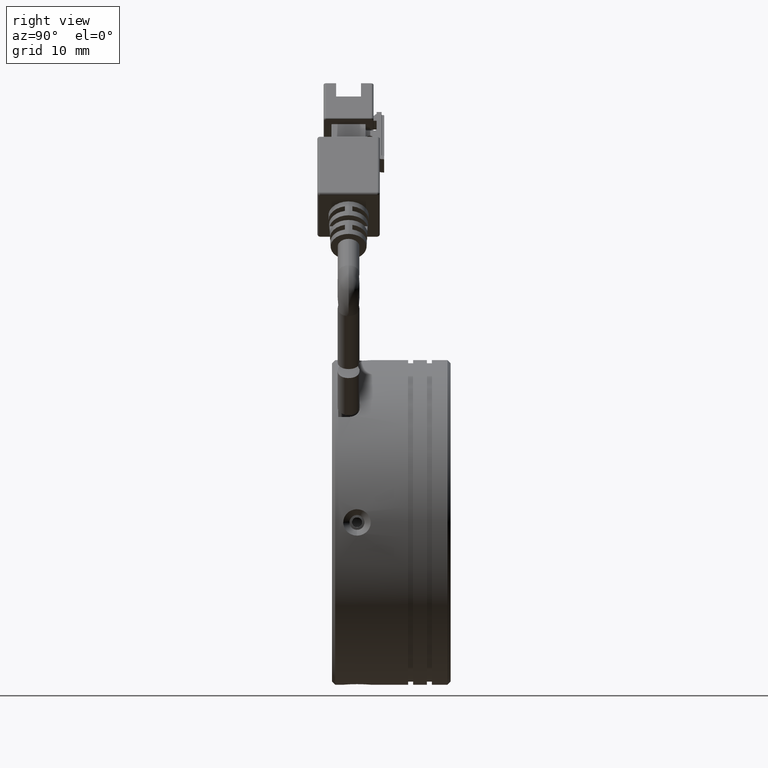
[diagram: clean part render]
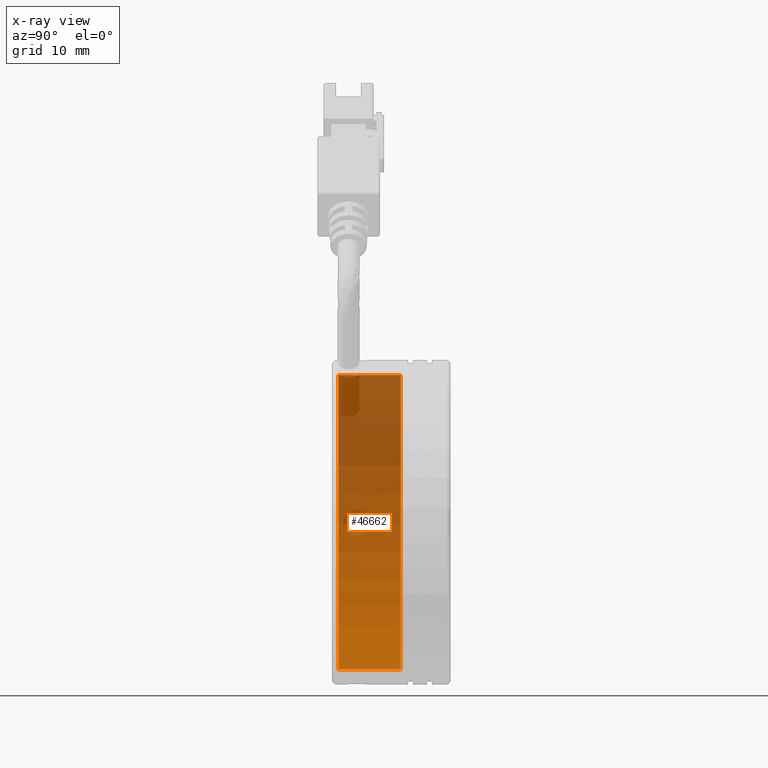
[diagram: x-ray — body ghosted, one internal face saturated and labeled with its STEP entity id]
A machine part, right view, then the same camera in x-ray: the body is ghosted and one INTERNAL B-rep face — a face not visible from any outside direction — is saturated and labeled: STEP entity #46662.
In plain terms, the highlighted cylindrical surface (partial cylindrical patch) has radius 23.6 mm, axis along (-0, -1, -0).
Its self-contained STEP definition (entity closure, byte-faithful):
#273 = CARTESIAN_POINT ( 'NONE',  ( -24.41270825699534800, -2.019923829761832000, -1.200000000000080600 ) ) ;
#351 = CARTESIAN_POINT ( 'NONE',  ( -1.891704058667388600, -2.624435281728529000, -23.57677552797129600 ) ) ;
#484 = CARTESIAN_POINT ( 'NONE',  ( -0.8432364767453736100, -5.019923829761831200, 23.59999999999999800 ) ) ;
#539 = CYLINDRICAL_SURFACE ( 'NONE', #46180, 23.59999999999999800 ) ;
#638 = VERTEX_POINT ( 'NONE', #42547 ) ;
#853 = VECTOR ( 'NONE', #6918, 1000.000000000000000 ) ;
#1387 = EDGE_CURVE ( 'NONE', #26175, #40789, #21824, .T. ) ;
#1430 = CARTESIAN_POINT ( 'NONE',  ( -1.802132564627843200, -1.281685546569973500, 23.58077143608722500 ) ) ;
#1921 = CARTESIAN_POINT ( 'NONE',  ( -1.157246261397692800, -0.8511140777613299700, -23.59835807141496400 ) ) ;
#1962 = CARTESIAN_POINT ( 'NONE',  ( -24.43202870784420000, -1.058868085110809700, -0.7358388954863058800 ) ) ;
#2073 = CARTESIAN_POINT ( 'NONE',  ( -24.42002881385663200, -2.625118701094709000, 1.048097340513627100 ) ) ;
#2888 = ORIENTED_EDGE ( 'NONE', *, *, #14032, .F. ) ;
#2962 = CARTESIAN_POINT ( 'NONE',  ( -0.8432364767453736100, -21.81214605198405500, 23.59999999999999800 ) ) ;
#3019 = CIRCLE ( 'NONE', #46726, 23.59999999999999800 ) ;
#3418 = CARTESIAN_POINT ( 'NONE',  ( -2.011380267493088500, -1.703945199785817000, -23.57114841574022500 ) ) ;
#3534 = DIRECTION ( 'NONE',  ( 0.0000000000000000000, 0.0000000000000000000, -1.000000000000000000 ) ) ;
#4137 = CARTESIAN_POINT ( 'NONE',  ( -1.581474895547215800, -2.978819811423894400, -23.58871022242496100 ) ) ;
#4280 = CARTESIAN_POINT ( 'NONE',  ( -2.012046225754328800, -2.333933601142113000, 23.57111606049467400 ) ) ;
#5215 = CARTESIAN_POINT ( 'NONE',  ( -2.011380267493263900, -1.703945199785779300, 23.57114841574021800 ) ) ;
#5440 = VERTEX_POINT ( 'NONE', #47721 ) ;
#5602 = CARTESIAN_POINT ( 'NONE',  ( -24.41270825699535900, -2.019923829761832000, 1.199999999999915400 ) ) ;
#5699 = CARTESIAN_POINT ( 'NONE',  ( -24.42001837946170900, -2.624696977122403100, -1.048327356491362000 ) ) ;
#5763 = CARTESIAN_POINT ( 'NONE',  ( -24.42002881385662900, -1.414728958428948900, -1.048097340513789700 ) ) ;
#5854 = CARTESIAN_POINT ( 'NONE',  ( -24.41270825699535900, -2.178491825478006100, 1.199999999999915400 ) ) ;
#6918 = DIRECTION ( 'NONE',  ( -0.0000000000000000000, -1.000000000000000000, -0.0000000000000000000 ) ) ;
#7814 = ORIENTED_EDGE ( 'NONE', *, *, #42787, .T. ) ;
#7926 = CARTESIAN_POINT ( 'NONE',  ( -1.159215122928722200, -3.188067622297395600, -23.59832575027449400 ) ) ;
#8061 = CARTESIAN_POINT ( 'NONE',  ( -1.802654267484277400, -2.757483976093404900, 23.58074984862322400 ) ) ;
#8188 = EDGE_CURVE ( 'NONE', #11560, #12485, #3019, .T. ) ;
#8680 = ORIENTED_EDGE ( 'NONE', *, *, #45755, .T. ) ;
#8996 = CARTESIAN_POINT ( 'NONE',  ( -2.043236476745371900, -2.019923829761832000, 23.56947178024997300 ) ) ;
#9148 = CARTESIAN_POINT ( 'NONE',  ( -24.41270825699534800, -2.019923829761832000, -1.200000000000080600 ) ) ;
#9376 = CARTESIAN_POINT ( 'NONE',  ( -24.42001837946170200, -1.415150682401247600, 1.048327356491190800 ) ) ;
#9471 = CARTESIAN_POINT ( 'NONE',  ( -24.43195985023421500, -2.979144311713537900, -0.7378317895481320000 ) ) ;
#9540 = CARTESIAN_POINT ( 'NONE',  ( -24.41270825699535900, -1.861356051969755600, -1.200000000000004200 ) ) ;
#9807 = AXIS2_PLACEMENT_3D ( 'NONE', #48664, #26118, #3534 ) ;
#11046 = CARTESIAN_POINT ( 'NONE',  ( -1.580796743012846700, -1.060506129409402500, -23.58873180317176800 ) ) ;
#11483 = VECTOR ( 'NONE', #32985, 1000.000000000000000 ) ;
#11560 = VERTEX_POINT ( 'NONE', #484 ) ;
#11699 = CARTESIAN_POINT ( 'NONE',  ( -0.8432364767453765000, -3.219923829761825600, -23.59999999999999800 ) ) ;
#11704 = VERTEX_POINT ( 'NONE', #27825 ) ;
#11845 = CARTESIAN_POINT ( 'NONE',  ( -1.447747979166847300, -3.068240703766772700, 23.59269773816365400 ) ) ;
#11959 = ORIENTED_EDGE ( 'NONE', *, *, #36852, .F. ) ;
#12062 = VERTEX_POINT ( 'NONE', #273 ) ;
#12485 = VERTEX_POINT ( 'NONE', #33686 ) ;
#12906 = CARTESIAN_POINT ( 'NONE',  ( -0.8432364767453765000, -5.019923829761831200, 0.0000000000000000000 ) ) ;
#12997 = ORIENTED_EDGE ( 'NONE', *, *, #32611, .T. ) ;
#13188 = CARTESIAN_POINT ( 'NONE',  ( -24.43195985023421500, -1.060703347810118700, 0.7378317895479573600 ) ) ;
#13296 = CARTESIAN_POINT ( 'NONE',  ( -24.44157246092627400, -3.188271686025125000, -0.3152599686548571100 ) ) ;
#13944 = DIRECTION ( 'NONE',  ( 0.0000000000000000000, 0.0000000000000000000, -1.000000000000000000 ) ) ;
#13991 = CARTESIAN_POINT ( 'NONE',  ( -2.043236476745188900, -1.861431566627940000, -23.56947178024998400 ) ) ;
#14032 = EDGE_CURVE ( 'NONE', #11704, #12485, #35043, .T. ) ;
#14958 = EDGE_CURVE ( 'NONE', #36831, #21217, #31473, .T. ) ;
#15329 = FACE_BOUND ( 'NONE', #42408, .T. ) ;
#15680 = CARTESIAN_POINT ( 'NONE',  ( -1.001728736124516800, -3.219923829761829100, 23.59999999999999800 ) ) ;
#15826 = ORIENTED_EDGE ( 'NONE', *, *, #45292, .F. ) ;
#16459 = CARTESIAN_POINT ( 'NONE',  ( -0.8432364767453736100, -0.8199238297618366400, 23.59999999999999800 ) ) ;
#16701 = DIRECTION ( 'NONE',  ( 0.0000000000000000000, 0.0000000000000000000, -1.000000000000000000 ) ) ;
#16981 = CARTESIAN_POINT ( 'NONE',  ( -24.44157246092626700, -0.8515759734985368600, 0.3152599686546836400 ) ) ;
#17073 = CARTESIAN_POINT ( 'NONE',  ( -24.44324190933849300, -3.220030670784799200, 0.1557079376987346200 ) ) ;
#18896 = CARTESIAN_POINT ( 'NONE',  ( -0.8432364767453736100, -0.8199238297618366400, 23.59999999999999800 ) ) ;
#18991 = CARTESIAN_POINT ( 'NONE',  ( -0.8432364767453736100, 4.980076170238170600, 23.59999999999999800 ) ) ;
#19540 = B_SPLINE_CURVE_WITH_KNOTS ( 'NONE', 3,
 ( #16459, #31452, #20206, #46588, #24010, #1430, #27798, #5215, #31610, #8996 ),
 .UNSPECIFIED., .F., .F.,
 ( 4, 2, 2, 2, 4 ),
 ( -5.421010862427522200E-020, 0.0004687231583219020200, 0.0009374463166438040400, 0.001406169474965706200, 0.001874892633287608300 ),
 .UNSPECIFIED. ) ;
#20206 = CARTESIAN_POINT ( 'NONE',  ( -1.157246261397724800, -0.8511140777612862300, 23.59835807141496700 ) ) ;
#20230 = VECTOR ( 'NONE', #34490, 1000.000000000000000 ) ;
#20273 = CARTESIAN_POINT ( 'NONE',  ( -0.8432364767453765000, -21.81214605198405500, -23.59999999999999800 ) ) ;
#20754 = CARTESIAN_POINT ( 'NONE',  ( -24.44324190933849600, -0.8198169887388664400, -0.1557079376989027000 ) ) ;
#20857 = CARTESIAN_POINT ( 'NONE',  ( -24.43596405977474400, -3.068919432468319100, 0.6035920195088654300 ) ) ;
#21217 = VERTEX_POINT ( 'NONE', #18896 ) ;
#21343 = DIRECTION ( 'NONE',  ( -0.0000000000000000000, -1.000000000000000000, -0.0000000000000000000 ) ) ;
#21824 = B_SPLINE_CURVE_WITH_KNOTS ( 'NONE', 3,
 ( #34746, #30826, #1921, #41191, #11046, #35409, #48224, #3418, #13991, #35909 ),
 .UNSPECIFIED., .F., .F.,
 ( 4, 2, 2, 2, 4 ),
 ( 0.001874892602522634000, 0.002343616699044423200, 0.002812340795566212300, 0.003281064892088001300, 0.003749788988609790400 ),
 .UNSPECIFIED. ) ;
#21833 = B_SPLINE_CURVE_WITH_KNOTS ( 'NONE', 3,
 ( #9148, #35722, #28293, #5699, #32094, #9471, #35889, #13296, #39673, #17073, #43460, #20857, #47222, #24657, #2073, #28462, #5854, #32257 ),
 .UNSPECIFIED., .F., .F.,
 ( 4, 2, 2, 2, 2, 2, 2, 2, 4 ),
 ( 0.003751566785594989700, 0.004220512956037755100, 0.004689459126480519600, 0.005158405296923285000, 0.005627351467366049600, 0.006096297637808815000, 0.006565243808251580400, 0.007034189978694345800, 0.007503136149137110300 ),
 .UNSPECIFIED. ) ;
#22129 = VECTOR ( 'NONE', #24074, 1000.000000000000000 ) ;
#22575 = EDGE_CURVE ( 'NONE', #21217, #638, #19540, .T. ) ;
#22912 = CARTESIAN_POINT ( 'NONE',  ( -2.012046225754153800, -2.333933601142074800, -23.57111606049467400 ) ) ;
#23055 = CARTESIAN_POINT ( 'NONE',  ( -2.043236476745371900, -2.019923829761832000, 23.56947178024997300 ) ) ;
#23100 = CARTESIAN_POINT ( 'NONE',  ( -0.8432364767453736100, -21.81214605198405500, 23.59999999999999800 ) ) ;
#23317 = ORIENTED_EDGE ( 'NONE', *, *, #14958, .T. ) ;
#24010 = CARTESIAN_POINT ( 'NONE',  ( -1.580796743012942600, -1.060506129409332100, 23.58873180317176500 ) ) ;
#24074 = DIRECTION ( 'NONE',  ( -0.0000000000000000000, -1.000000000000000000, -0.0000000000000000000 ) ) ;
#24133 = FACE_OUTER_BOUND ( 'NONE', #26499, .T. ) ;
#24561 = CARTESIAN_POINT ( 'NONE',  ( -24.43596405977474000, -0.9709282270553423200, -0.6035920195090254100 ) ) ;
#24657 = CARTESIAN_POINT ( 'NONE',  ( -24.42396984322875400, -2.757145182925909000, 0.9599956775297957500 ) ) ;
#26027 = ORIENTED_EDGE ( 'NONE', *, *, #34330, .F. ) ;
#26118 = DIRECTION ( 'NONE',  ( -0.0000000000000000000, -1.000000000000000000, -0.0000000000000000000 ) ) ;
#26175 = VERTEX_POINT ( 'NONE', #26576 ) ;
#26499 = EDGE_LOOP ( 'NONE', ( #15826, #23317, #27376, #8680, #42217, #43978, #2888, #11959, #44525, #26027 ) ) ;
#26576 = CARTESIAN_POINT ( 'NONE',  ( -0.8432364767453765000, -0.8199238297618384200, -23.59999999999999800 ) ) ;
#26727 = CARTESIAN_POINT ( 'NONE',  ( -1.802654267484141300, -2.757483976093340500, -23.58074984862322100 ) ) ;
#26878 = CARTESIAN_POINT ( 'NONE',  ( -2.043236476745448300, -2.178416414253563800, 23.56947178024996600 ) ) ;
#27376 = ORIENTED_EDGE ( 'NONE', *, *, #22575, .T. ) ;
#27798 = CARTESIAN_POINT ( 'NONE',  ( -1.891553398895395900, -1.415412422757550600, 23.57678156965978600 ) ) ;
#27825 = CARTESIAN_POINT ( 'NONE',  ( -0.8432364767453765000, -3.219923829761825600, -23.59999999999999800 ) ) ;
#28199 = CARTESIAN_POINT ( 'NONE',  ( -24.41270825699535900, -1.861355943008033500, 1.199999999999915100 ) ) ;
#28293 = CARTESIAN_POINT ( 'NONE',  ( -24.41435423061420100, -2.334085950753630900, -1.168778408369411000 ) ) ;
#28364 = CARTESIAN_POINT ( 'NONE',  ( -24.42396984322875400, -1.282702476597746400, -0.9599956775299515200 ) ) ;
#28462 = CARTESIAN_POINT ( 'NONE',  ( -24.41435779037914600, -2.334381946304344300, 1.168710811287322100 ) ) ;
#29575 = VERTEX_POINT ( 'NONE', #41878 ) ;
#29791 = B_SPLINE_CURVE_WITH_KNOTS ( 'NONE', 3,
 ( #5602, #28199, #31998, #9376, #35787, #13188, #39569, #16981, #43349, #20754, #47126, #24561, #1962, #28364, #5763, #32157, #9540, #35953 ),
 .UNSPECIFIED., .F., .F.,
 ( 4, 2, 2, 2, 2, 2, 2, 2, 4 ),
 ( 0.0000000000000000000, 0.0004689458481993737100, 0.0009378916963987474200, 0.001406837544598121100, 0.001875783392797494800, 0.002344729240996868600, 0.002813675089196242300, 0.003282620937395616000, 0.003751566785594989700 ),
 .UNSPECIFIED. ) ;
#30547 = CARTESIAN_POINT ( 'NONE',  ( -1.447747979166769600, -3.068240703766708300, -23.59269773816366100 ) ) ;
#30668 = CARTESIAN_POINT ( 'NONE',  ( -1.891704058667547300, -2.624435281728574800, 23.57677552797130000 ) ) ;
#30826 = CARTESIAN_POINT ( 'NONE',  ( -1.001729055964604800, -0.8199238297618634000, -23.59999999999999100 ) ) ;
#31452 = CARTESIAN_POINT ( 'NONE',  ( -1.001729055964617000, -0.8199238297618355300, 23.59999999999999800 ) ) ;
#31473 = LINE ( 'NONE', #23100, #20230 ) ;
#31610 = CARTESIAN_POINT ( 'NONE',  ( -2.043236476745295500, -1.861431566627348900, 23.56947178024997700 ) ) ;
#31998 = CARTESIAN_POINT ( 'NONE',  ( -24.41435423061421200, -1.705761708770036700, 1.168778408369247600 ) ) ;
#32094 = CARTESIAN_POINT ( 'NONE',  ( -24.42399586663525200, -2.757790312193932900, -0.9591937952086525600 ) ) ;
#32157 = CARTESIAN_POINT ( 'NONE',  ( -24.41435779037913900, -1.705465713219329600, -1.168710811287491100 ) ) ;
#32177 = LINE ( 'NONE', #20273, #22129 ) ;
#32257 = CARTESIAN_POINT ( 'NONE',  ( -24.41270825699535900, -2.019923829761832000, 1.199999999999915400 ) ) ;
#32611 = EDGE_CURVE ( 'NONE', #29575, #12062, #29791, .T. ) ;
#32787 = EDGE_CURVE ( 'NONE', #5440, #11560, #40401, .T. ) ;
#32985 = DIRECTION ( 'NONE',  ( -0.0000000000000000000, -1.000000000000000000, -0.0000000000000000000 ) ) ;
#33686 = CARTESIAN_POINT ( 'NONE',  ( -0.8432364767453765000, -5.019923829761831200, -23.59999999999999800 ) ) ;
#34156 = CARTESIAN_POINT ( 'NONE',  ( -2.043236476745188500, -2.019923829761832000, -23.56947178024998400 ) ) ;
#34311 = CARTESIAN_POINT ( 'NONE',  ( -1.001730018525380600, -3.219923829761801100, -23.60000000000000500 ) ) ;
#34330 = EDGE_CURVE ( 'NONE', #41710, #26175, #32177, .T. ) ;
#34449 = CARTESIAN_POINT ( 'NONE',  ( -1.581474895547319700, -2.978819811423958800, 23.58871022242495400 ) ) ;
#34490 = DIRECTION ( 'NONE',  ( -0.0000000000000000000, -1.000000000000000000, -0.0000000000000000000 ) ) ;
#34746 = CARTESIAN_POINT ( 'NONE',  ( -0.8432364767453765000, -0.8199238297618384200, -23.59999999999999800 ) ) ;
#35043 = LINE ( 'NONE', #40699, #853 ) ;
#35409 = CARTESIAN_POINT ( 'NONE',  ( -1.802132564627709500, -1.281685546570041200, -23.58077143608723200 ) ) ;
#35722 = CARTESIAN_POINT ( 'NONE',  ( -24.41270825699535200, -2.178491716515050100, -1.200000000000157400 ) ) ;
#35787 = CARTESIAN_POINT ( 'NONE',  ( -24.42399586663525600, -1.282057347329728800, 0.9591937952084850200 ) ) ;
#35889 = CARTESIAN_POINT ( 'NONE',  ( -24.43594803322538700, -3.068548680799536100, -0.6039962606320449200 ) ) ;
#35909 = CARTESIAN_POINT ( 'NONE',  ( -2.043236476745188500, -2.019923829761832000, -23.56947178024998400 ) ) ;
#35953 = CARTESIAN_POINT ( 'NONE',  ( -24.41270825699534800, -2.019923829761832000, -1.200000000000080600 ) ) ;
#36831 = VERTEX_POINT ( 'NONE', #18991 ) ;
#36852 = EDGE_CURVE ( 'NONE', #40789, #11704, #48676, .T. ) ;
#38243 = CARTESIAN_POINT ( 'NONE',  ( -1.159215122928757300, -3.188067622297440900, 23.59832575027449400 ) ) ;
#39302 = DIRECTION ( 'NONE',  ( -0.0000000000000000000, -1.000000000000000000, -0.0000000000000000000 ) ) ;
#39569 = CARTESIAN_POINT ( 'NONE',  ( -24.43594803322539700, -0.9712989787241236300, 0.6039962606318725100 ) ) ;
#39628 = CARTESIAN_POINT ( 'NONE',  ( -0.8432364767453765000, 4.980076170238170600, -23.59999999999999800 ) ) ;
#39673 = CARTESIAN_POINT ( 'NONE',  ( -24.44323101557521100, -3.219816426723565200, -0.1573503971682221900 ) ) ;
#40141 = B_SPLINE_CURVE_WITH_KNOTS ( 'NONE', 3,
 ( #23055, #26878, #4280, #30668, #8061, #34449, #11845, #38243, #15680, #42022 ),
 .UNSPECIFIED., .F., .F.,
 ( 4, 2, 2, 2, 4 ),
 ( 0.001874892633287608300, 0.002343616741991071200, 0.002812340850694533900, 0.003281064959397996600, 0.003749789068101459300 ),
 .UNSPECIFIED. ) ;
#40401 = LINE ( 'NONE', #2962, #11483 ) ;
#40699 = CARTESIAN_POINT ( 'NONE',  ( -0.8432364767453765000, -21.81214605198405500, -23.59999999999999800 ) ) ;
#40789 = VERTEX_POINT ( 'NONE', #48252 ) ;
#41191 = CARTESIAN_POINT ( 'NONE',  ( -1.447748026053364200, -0.9714562966536196600, -23.59270377888737300 ) ) ;
#41710 = VERTEX_POINT ( 'NONE', #39628 ) ;
#41878 = CARTESIAN_POINT ( 'NONE',  ( -24.41270825699535900, -2.019923829761832000, 1.199999999999915400 ) ) ;
#42022 = CARTESIAN_POINT ( 'NONE',  ( -0.8432364767453736100, -3.219923829761827300, 23.59999999999999800 ) ) ;
#42217 = ORIENTED_EDGE ( 'NONE', *, *, #32787, .T. ) ;
#42408 = EDGE_LOOP ( 'NONE', ( #12997, #7814 ) ) ;
#42547 = CARTESIAN_POINT ( 'NONE',  ( -2.043236476745371900, -2.019923829761832000, 23.56947178024997300 ) ) ;
#42787 = EDGE_CURVE ( 'NONE', #12062, #29575, #21833, .T. ) ;
#43349 = CARTESIAN_POINT ( 'NONE',  ( -24.44323101557521500, -0.8200312328000981500, 0.1573503971680454400 ) ) ;
#43460 = CARTESIAN_POINT ( 'NONE',  ( -24.44160815473928500, -3.189001594586605000, 0.3130052400594893800 ) ) ;
#43913 = CARTESIAN_POINT ( 'NONE',  ( -0.8432364767453765000, -21.81214605198405500, 0.0000000000000000000 ) ) ;
#43978 = ORIENTED_EDGE ( 'NONE', *, *, #8188, .T. ) ;
#44525 = ORIENTED_EDGE ( 'NONE', *, *, #1387, .F. ) ;
#45292 = EDGE_CURVE ( 'NONE', #36831, #41710, #48071, .T. ) ;
#45335 = CARTESIAN_POINT ( 'NONE',  ( -2.043236476745188900, -2.178416414254122900, -23.56947178024998000 ) ) ;
#45755 = EDGE_CURVE ( 'NONE', #638, #5440, #40141, .T. ) ;
#46180 = AXIS2_PLACEMENT_3D ( 'NONE', #43913, #21343, #13944 ) ;
#46588 = CARTESIAN_POINT ( 'NONE',  ( -1.447748026053437000, -0.9714562966535530400, 23.59270377888736500 ) ) ;
#46662 = ADVANCED_FACE ( 'NONE', ( #15329, #24133 ), #539, .F. ) ;
#46726 = AXIS2_PLACEMENT_3D ( 'NONE', #12906, #39302, #16701 ) ;
#47126 = CARTESIAN_POINT ( 'NONE',  ( -24.44160815473927800, -0.8508460649370627200, -0.3130052400596656800 ) ) ;
#47222 = CARTESIAN_POINT ( 'NONE',  ( -24.43202870784421100, -2.980979574412863500, 0.7358388954861324600 ) ) ;
#47721 = CARTESIAN_POINT ( 'NONE',  ( -0.8432364767453736100, -3.219923829761827300, 23.59999999999999800 ) ) ;
#48071 = CIRCLE ( 'NONE', #9807, 23.59999999999999800 ) ;
#48224 = CARTESIAN_POINT ( 'NONE',  ( -1.891553398895245100, -1.415412422757610400, -23.57678156965979000 ) ) ;
#48252 = CARTESIAN_POINT ( 'NONE',  ( -2.043236476745188500, -2.019923829761832000, -23.56947178024998400 ) ) ;
#48664 = CARTESIAN_POINT ( 'NONE',  ( -0.8432364767453765000, 4.980076170238170600, 0.0000000000000000000 ) ) ;
#48676 = B_SPLINE_CURVE_WITH_KNOTS ( 'NONE', 3,
 ( #34156, #45335, #22912, #351, #26727, #4137, #30547, #7926, #34311, #11699 ),
 .UNSPECIFIED., .F., .F.,
 ( 4, 2, 2, 2, 4 ),
 ( 0.003749788988609790400, 0.004218514035515038400, 0.004687239082420286900, 0.005155964129325536300, 0.005624689176230784700 ),
 .UNSPECIFIED. ) ;